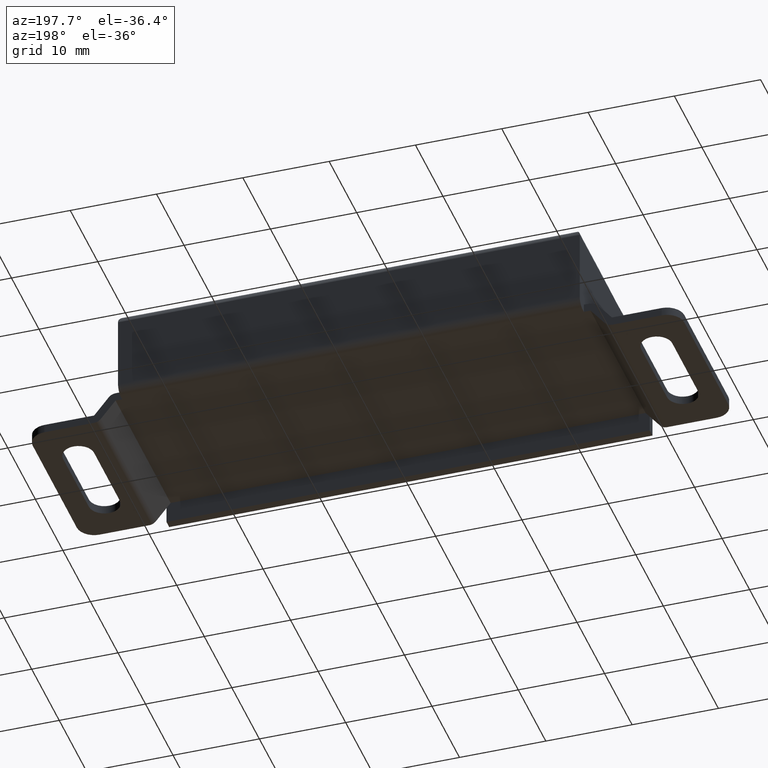
[diagram: clean part render]
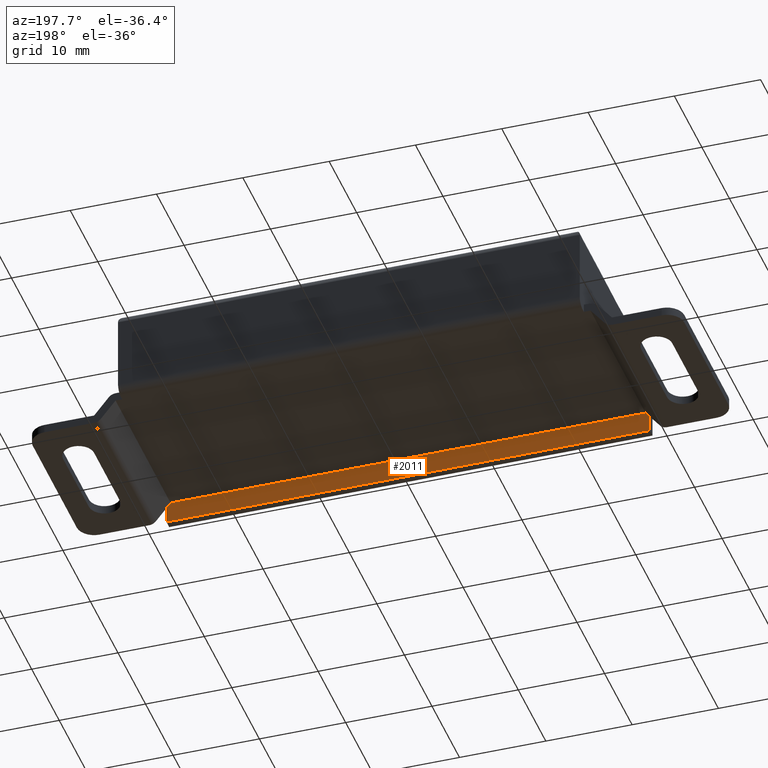
[diagram: same view with one face highlighted and labeled with its STEP entity id]
A machine part, auxiliary view. The second image highlights one B-rep face of the part: STEP entity #2011.
In plain terms, the highlighted face is a freeform B-spline surface patch.
Its self-contained STEP definition (entity closure, byte-faithful):
#1892=CARTESIAN_POINT('',(-27.999993000000000,-20.0,1.899194499955730));
#1893=VERTEX_POINT('',#1892);
#1899=CARTESIAN_POINT('',(-27.999993000000000,-20.0,0.0));
#1900=VERTEX_POINT('',#1899);
#1901=CARTESIAN_POINT('',(-27.999993000000000,-20.0,0.0));
#1902=CARTESIAN_POINT('',(-27.999993000000000,-20.0,1.899194499955730));
#1903=QUASI_UNIFORM_CURVE('',1,(#1901,#1902),.UNSPECIFIED.,.F.,.U.);
#1904=EDGE_CURVE('',#1900,#1893,#1903,.T.);
#1928=CARTESIAN_POINT('',(27.999993000000000,-20.0,0.0));
#1929=VERTEX_POINT('',#1928);
#1935=CARTESIAN_POINT('',(27.999993000000000,-20.0,1.899216999999545));
#1936=VERTEX_POINT('',#1935);
#1937=CARTESIAN_POINT('',(27.999993000000000,-20.0,0.0));
#1938=CARTESIAN_POINT('',(27.999993000000000,-20.0,1.899216999999545));
#1939=QUASI_UNIFORM_CURVE('',1,(#1937,#1938),.UNSPECIFIED.,.F.,.U.);
#1940=EDGE_CURVE('',#1929,#1936,#1939,.T.);
#1956=CARTESIAN_POINT('',(27.999993000000000,-20.0,0.0));
#1957=CARTESIAN_POINT('',(-27.999993000000000,-20.0,0.0));
#1958=QUASI_UNIFORM_CURVE('',1,(#1956,#1957),.UNSPECIFIED.,.F.,.U.);
#1959=EDGE_CURVE('',#1929,#1900,#1958,.T.);
#1982=CARTESIAN_POINT('',(-30.797191666473370,-20.0,2.624874995154621));
#1983=CARTESIAN_POINT('',(-30.797191666473370,-20.0,-0.124875062209745));
#1984=CARTESIAN_POINT('',(30.797193669188928,-20.0,2.624874995154621));
#1985=CARTESIAN_POINT('',(30.797193669188928,-20.0,-0.124875062209745));
#1986=B_SPLINE_SURFACE_WITH_KNOTS('',1,1,((#1982,#1984),(#1983,#1985)),.UNSPECIFIED.,.F.,.F.,.U.,(2,2),(2,2),(0.0,2.749750057364366),(0.0,61.594385335662302),.UNSPECIFIED.);
#1987=ORIENTED_EDGE('',*,*,#1904,.T.);
#1988=CARTESIAN_POINT('',(-27.519349546159599,-20.0,2.500000000000100));
#1989=VERTEX_POINT('',#1988);
#1990=CARTESIAN_POINT('',(-27.999993000000000,-20.0,1.899194499955730));
#1991=CARTESIAN_POINT('',(-27.519349546159599,-20.0,2.500000000000100));
#1992=QUASI_UNIFORM_CURVE('',1,(#1990,#1991),.UNSPECIFIED.,.F.,.U.);
#1993=EDGE_CURVE('',#1893,#1989,#1992,.T.);
#1994=ORIENTED_EDGE('',*,*,#1993,.T.);
#1995=CARTESIAN_POINT('',(27.519367546159199,-20.0,2.500000000000100));
#1996=VERTEX_POINT('',#1995);
#1997=CARTESIAN_POINT('',(-27.519349546159599,-20.0,2.500000000000100));
#1998=CARTESIAN_POINT('',(27.519367546159199,-20.0,2.500000000000100));
#1999=QUASI_UNIFORM_CURVE('',1,(#1997,#1998),.UNSPECIFIED.,.F.,.U.);
#2000=EDGE_CURVE('',#1989,#1996,#1999,.T.);
#2001=ORIENTED_EDGE('',*,*,#2000,.T.);
#2002=CARTESIAN_POINT('',(27.519367546159199,-20.0,2.500000000000100));
#2003=CARTESIAN_POINT('',(27.999993000000000,-20.0,1.899216999999545));
#2004=QUASI_UNIFORM_CURVE('',1,(#2002,#2003),.UNSPECIFIED.,.F.,.U.);
#2005=EDGE_CURVE('',#1996,#1936,#2004,.T.);
#2006=ORIENTED_EDGE('',*,*,#2005,.T.);
#2007=ORIENTED_EDGE('',*,*,#1940,.F.);
#2008=ORIENTED_EDGE('',*,*,#1959,.T.);
#2009=EDGE_LOOP('',(#1987,#1994,#2001,#2006,#2007,#2008));
#2010=FACE_OUTER_BOUND('',#2009,.T.);
#2011=ADVANCED_FACE('',(#2010),#1986,.F.);